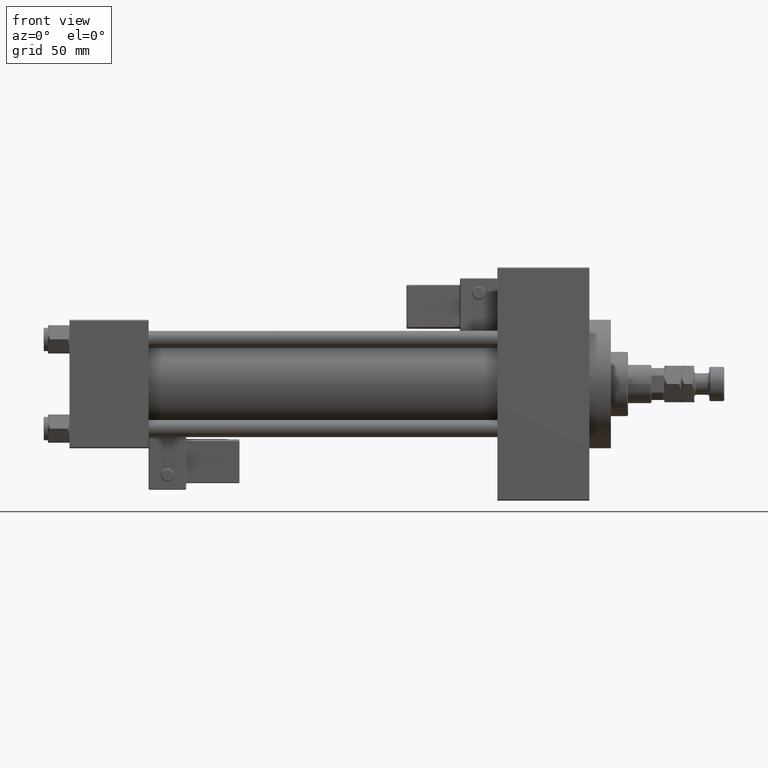
[diagram: clean part render]
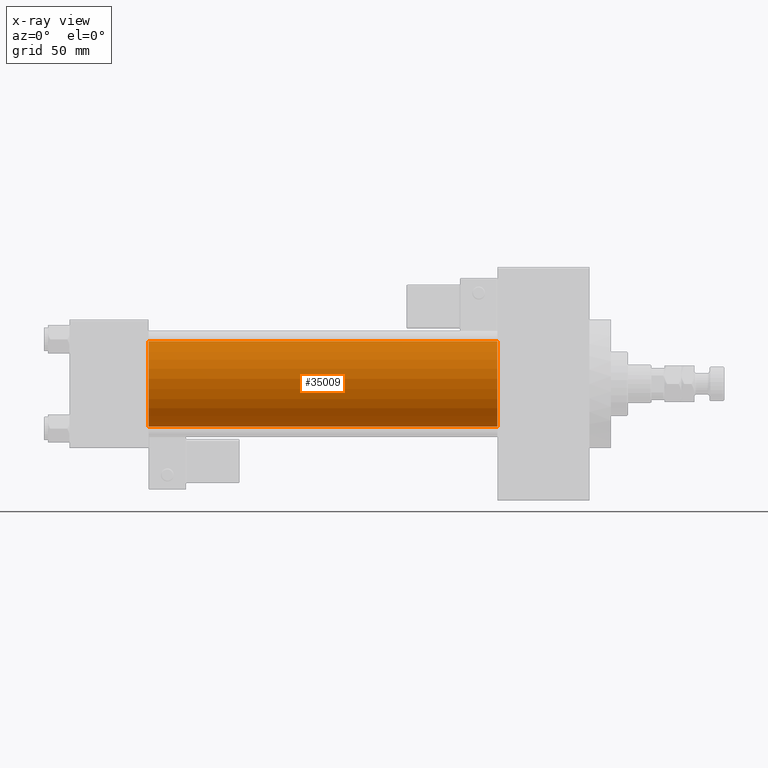
[diagram: x-ray — body ghosted, one internal face saturated and labeled with its STEP entity id]
A machine part, front view, then the same camera in x-ray: the body is ghosted and one INTERNAL B-rep face — a face not visible from any outside direction — is saturated and labeled: STEP entity #35009.
In plain terms, the highlighted cylindrical surface (partial cylindrical patch) has radius 20 mm, axis along (-1, -0, -0).
Its self-contained STEP definition (entity closure, byte-faithful):
#61 = AXIS2_PLACEMENT_3D ( 'NONE', #24222, #39550, #32768 ) ;
#105 = CIRCLE ( 'NONE', #48957, 20.00000000000000000 ) ;
#2872 = CIRCLE ( 'NONE', #50071, 20.00000000000000000 ) ;
#6838 = EDGE_CURVE ( 'NONE', #24039, #38887, #38234, .T. ) ;
#7458 = EDGE_CURVE ( 'NONE', #34838, #24039, #2872, .T. ) ;
#9427 = VECTOR ( 'NONE', #13857, 1000.000000000000000 ) ;
#10988 = CARTESIAN_POINT ( 'NONE',  ( 200.0000000000000000, -1.527916156705042519E-16, -20.00000000000000000 ) ) ;
#12238 = DIRECTION ( 'NONE',  ( 0.000000000000000000, 0.000000000000000000, -1.000000000000000000 ) ) ;
#13857 = DIRECTION ( 'NONE',  ( -1.000000000000000000, -0.000000000000000000, -0.000000000000000000 ) ) ;
#14620 = CARTESIAN_POINT ( 'NONE',  ( 37.00000000000000000, -1.527916156705042519E-16, -20.00000000000000000 ) ) ;
#16946 = CARTESIAN_POINT ( 'NONE',  ( 200.0000000000000000, -1.527916156705042519E-16, -20.00000000000000000 ) ) ;
#18906 = CARTESIAN_POINT ( 'NONE',  ( 200.0000000000000000, -2.602085213965210642E-15, 20.00000000000000000 ) ) ;
#19872 = DIRECTION ( 'NONE',  ( 1.000000000000000000, 0.000000000000000000, 0.000000000000000000 ) ) ;
#20508 = ORIENTED_EDGE ( 'NONE', *, *, #6838, .T. ) ;
#22021 = DIRECTION ( 'NONE',  ( -1.000000000000000000, -0.000000000000000000, -0.000000000000000000 ) ) ;
#23928 = DIRECTION ( 'NONE',  ( 1.000000000000000000, 0.000000000000000000, 0.000000000000000000 ) ) ;
#24039 = VERTEX_POINT ( 'NONE', #16946 ) ;
#24222 = CARTESIAN_POINT ( 'NONE',  ( 200.0000000000000000, -2.602085213965210642E-15, 0.000000000000000000 ) ) ;
#25188 = EDGE_CURVE ( 'NONE', #34838, #29349, #33698, .T. ) ;
#26303 = VECTOR ( 'NONE', #22021, 1000.000000000000000 ) ;
#28123 = FACE_OUTER_BOUND ( 'NONE', #36595, .T. ) ;
#29049 = ORIENTED_EDGE ( 'NONE', *, *, #25188, .F. ) ;
#29349 = VERTEX_POINT ( 'NONE', #30120 ) ;
#30120 = CARTESIAN_POINT ( 'NONE',  ( 37.00000000000000000, -2.602085213965210642E-15, 20.00000000000000000 ) ) ;
#32062 = CARTESIAN_POINT ( 'NONE',  ( 200.0000000000000000, -2.602085213965210642E-15, 0.000000000000000000 ) ) ;
#32768 = DIRECTION ( 'NONE',  ( 0.000000000000000000, 0.000000000000000000, 1.000000000000000000 ) ) ;
#33698 = LINE ( 'NONE', #18906, #26303 ) ;
#34838 = VERTEX_POINT ( 'NONE', #47323 ) ;
#35009 = ADVANCED_FACE ( 'NONE', ( #28123 ), #43932, .F. ) ;
#35604 = CARTESIAN_POINT ( 'NONE',  ( 37.00000000000000000, -2.602085213965210642E-15, 0.000000000000000000 ) ) ;
#36595 = EDGE_LOOP ( 'NONE', ( #46292, #20508, #41813, #29049 ) ) ;
#38234 = LINE ( 'NONE', #10988, #9427 ) ;
#38887 = VERTEX_POINT ( 'NONE', #14620 ) ;
#39550 = DIRECTION ( 'NONE',  ( -1.000000000000000000, -0.000000000000000000, -0.000000000000000000 ) ) ;
#39844 = DIRECTION ( 'NONE',  ( 0.000000000000000000, 0.000000000000000000, -1.000000000000000000 ) ) ;
#41813 = ORIENTED_EDGE ( 'NONE', *, *, #48426, .F. ) ;
#43932 = CYLINDRICAL_SURFACE ( 'NONE', #61, 20.00000000000000000 ) ;
#46292 = ORIENTED_EDGE ( 'NONE', *, *, #7458, .T. ) ;
#47323 = CARTESIAN_POINT ( 'NONE',  ( 200.0000000000000000, -2.602085213965210642E-15, 20.00000000000000000 ) ) ;
#48426 = EDGE_CURVE ( 'NONE', #29349, #38887, #105, .T. ) ;
#48957 = AXIS2_PLACEMENT_3D ( 'NONE', #35604, #23928, #12238 ) ;
#50071 = AXIS2_PLACEMENT_3D ( 'NONE', #32062, #19872, #39844 ) ;